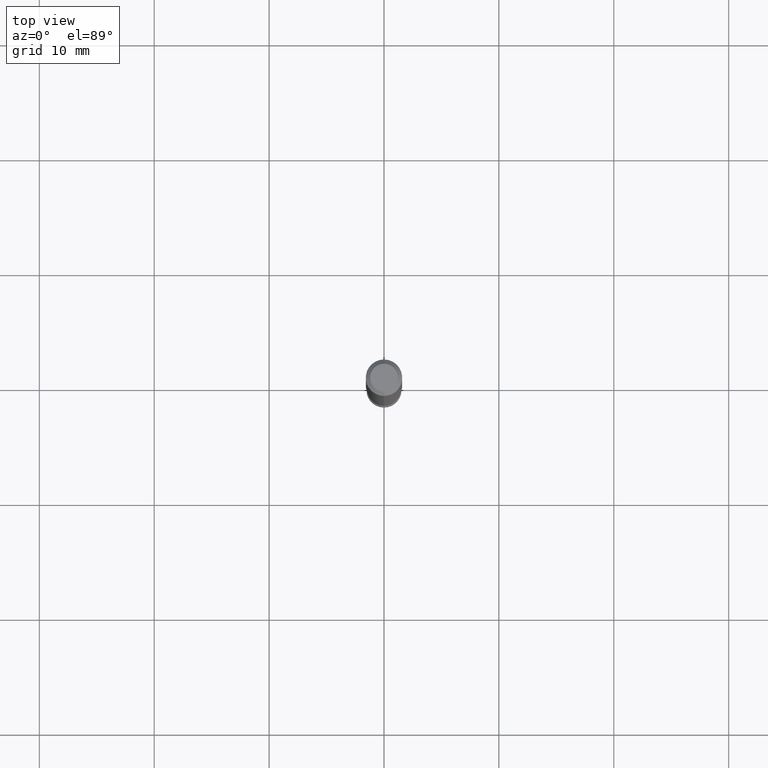
[diagram: clean part render]
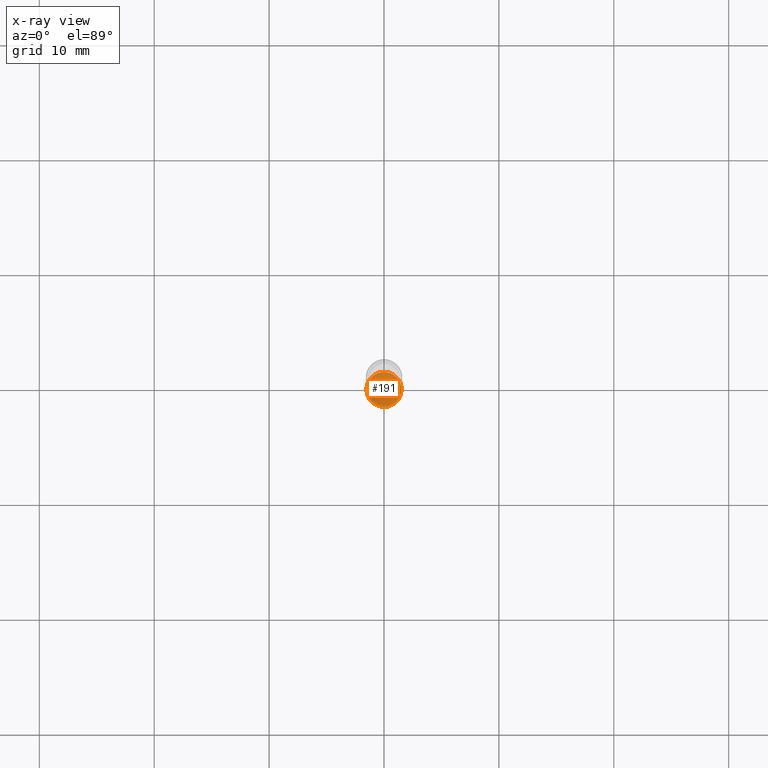
[diagram: x-ray — body ghosted, one internal face saturated and labeled with its STEP entity id]
A machine part, top view, then the same camera in x-ray: the body is ghosted and one INTERNAL B-rep face — a face not visible from any outside direction — is saturated and labeled: STEP entity #191.
In plain terms, the highlighted planar face has unit normal (-0, 0, 1).
Its self-contained STEP definition (entity closure, byte-faithful):
#7 = AXIS2_PLACEMENT_3D ( 'NONE', #273, #447, #68 ) ;
#34 = CIRCLE ( 'NONE', #60, 0.05999999999999999778 ) ;
#60 = AXIS2_PLACEMENT_3D ( 'NONE', #283, #321, #508 ) ;
#68 = DIRECTION ( 'NONE',  ( -6.982962677686265922E-15, -1.000000000000000000, 3.491415064988271555E-15 ) ) ;
#101 = PLANE ( 'NONE',  #7 ) ;
#105 = DIRECTION ( 'NONE',  ( -6.982962677686265922E-15, -1.000000000000000000, 4.553079989440439092E-15 ) ) ;
#114 = ORIENTED_EDGE ( 'NONE', *, *, #352, .F. ) ;
#129 = ORIENTED_EDGE ( 'NONE', *, *, #423, .F. ) ;
#140 = VERTEX_POINT ( 'NONE', #145 ) ;
#145 = CARTESIAN_POINT ( 'NONE',  ( -4.189777606611193920E-16, -0.06000000000000811629, -2.319999999999999840 ) ) ;
#191 = ADVANCED_FACE ( 'NONE', ( #498 ), #101, .F. ) ;
#195 = CARTESIAN_POINT ( 'NONE',  ( 5.673594997131898498E-29, -8.100082950772790954E-15, -2.320000000000000284 ) ) ;
#243 = DIRECTION ( 'NONE',  ( -2.445515084970645769E-29, 3.491415064988271555E-15, 1.000000000000000000 ) ) ;
#273 = CARTESIAN_POINT ( 'NONE',  ( 4.189777606612326922E-16, 0.05999999999999190009, -2.320000000000000284 ) ) ;
#282 = VERTEX_POINT ( 'NONE', #302 ) ;
#283 = CARTESIAN_POINT ( 'NONE',  ( 5.673594997131898498E-29, -8.100082950772790954E-15, -2.320000000000000284 ) ) ;
#293 = CIRCLE ( 'NONE', #308, 0.05999999999999999778 ) ;
#302 = CARTESIAN_POINT ( 'NONE',  ( 4.263256414561169430E-16, 0.05999999999999191397, -2.320000000000000284 ) ) ;
#308 = AXIS2_PLACEMENT_3D ( 'NONE', #195, #243, #105 ) ;
#316 = EDGE_LOOP ( 'NONE', ( #114, #129 ) ) ;
#321 = DIRECTION ( 'NONE',  ( -2.445515084970645769E-29, 3.491415064988271555E-15, 1.000000000000000000 ) ) ;
#352 = EDGE_CURVE ( 'NONE', #140, #282, #34, .T. ) ;
#423 = EDGE_CURVE ( 'NONE', #282, #140, #293, .T. ) ;
#447 = DIRECTION ( 'NONE',  ( -2.445515084970645489E-29, 3.491415064988271555E-15, 1.000000000000000000 ) ) ;
#498 = FACE_OUTER_BOUND ( 'NONE', #316, .T. ) ;
#508 = DIRECTION ( 'NONE',  ( -6.982962677686265922E-15, -1.000000000000000000, 4.553079989440439092E-15 ) ) ;